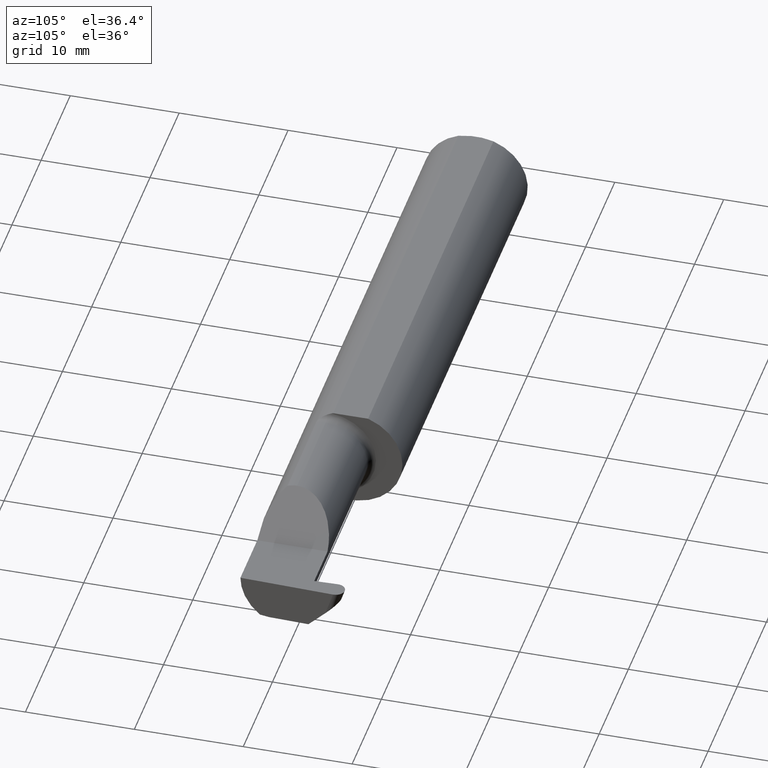
[diagram: clean part render]
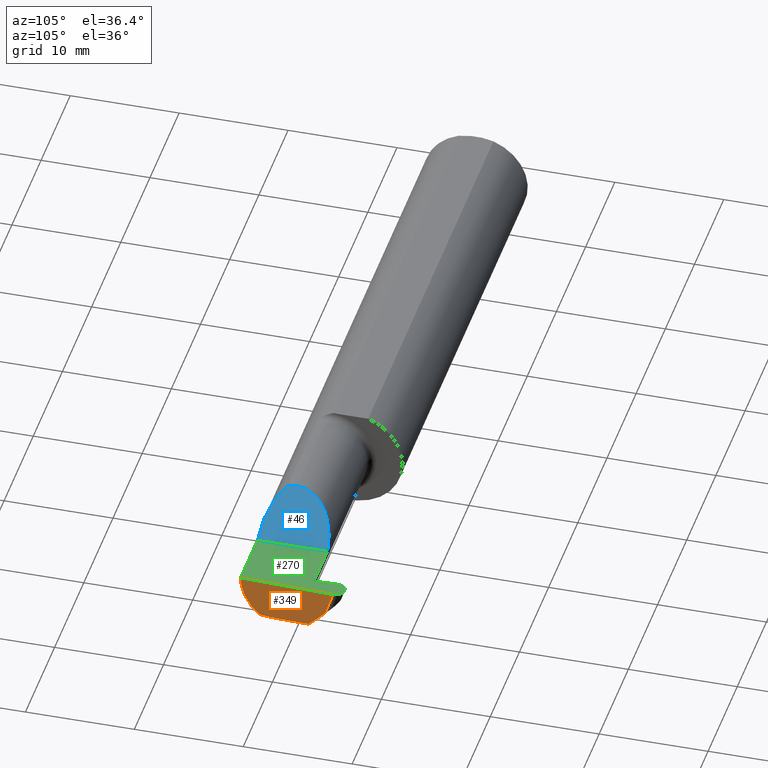
[diagram: same view with three faces highlighted in distinct colors, each labeled with its STEP entity id]
A machine part, auxiliary view with three faces highlighted in distinct colors.
Their STEP definitions:

[orange] entity #349 — the highlighted planar face has unit normal (-0.9992, 0.0349, 0.0175).
#12 = LINE ( 'NONE', #487, #18 ) ;
#18 = VECTOR ( 'NONE', #740, 39.37007874015747433 ) ;
#31 = EDGE_CURVE ( 'NONE', #382, #815, #12, .T. ) ;
#51 = VECTOR ( 'NONE', #198, 39.37007874015748854 ) ;
#71 = CARTESIAN_POINT ( 'NONE',  ( 2.489143054109411057, -0.08335000000000014619, -0.1500000000000000500 ) ) ;
#73 = CARTESIAN_POINT ( 'NONE',  ( 2.497385173767516786, 0.1218770478189729611, -0.08842600372417716570 ) ) ;
#80 = AXIS2_PLACEMENT_3D ( 'NONE', #354, #599, #474 ) ;
#96 = VERTEX_POINT ( 'NONE', #638 ) ;
#110 = CARTESIAN_POINT ( 'NONE',  ( 2.489143054109411057, -0.08335000000000014619, -0.1500000000000000500 ) ) ;
#158 = EDGE_CURVE ( 'NONE', #459, #96, #455, .T. ) ;
#189 = CARTESIAN_POINT ( 'NONE',  ( 2.487084196965268390, -0.1623470442677541203, -0.1099340280425337990 ) ) ;
#198 = DIRECTION ( 'NONE',  ( -0.03489949670249307273, -0.9993908270190959842, 0.000000000000000000 ) ) ;
#228 = PLANE ( 'NONE',  #80 ) ;
#264 = LINE ( 'NONE', #438, #51 ) ;
#286 = LINE ( 'NONE', #363, #439 ) ;
#290 = DIRECTION ( 'NONE',  ( 0.02739170151059983765, 0.3089010440752013031, 0.9506996579664920288 ) ) ;
#303 = ORIENTED_EDGE ( 'NONE', *, *, #708, .T. ) ;
#320 = CARTESIAN_POINT ( 'NONE',  ( 2.488744025780163405, -0.09477667630339431382, -0.1499999999999999667 ) ) ;
#348 = CARTESIAN_POINT ( 'NONE',  ( 2.496599625675735457, 0.1068818013178887971, -0.1034212502252615240 ) ) ;
#349 = ADVANCED_FACE ( 'NONE', ( #799 ), #228, .F. ) ;
#350 = CARTESIAN_POINT ( 'NONE',  ( 2.488026713523223243, -0.1172600179964006784, -0.1461167706989303650 ) ) ;
#352 = VERTEX_POINT ( 'NONE', #110 ) ;
#354 = CARTESIAN_POINT ( 'NONE',  ( 2.499980768683121024, 0.1519786885938757826, 0.000000000000000000 ) ) ;
#363 = CARTESIAN_POINT ( 'NONE',  ( 2.499944547461123268, 0.1507395558974708449, 0.0004036622306032633173 ) ) ;
#382 = VERTEX_POINT ( 'NONE', #669 ) ;
#384 = EDGE_CURVE ( 'NONE', #705, #815, #746, .T. ) ;
#420 = EDGE_CURVE ( 'NONE', #96, #352, #264, .T. ) ;
#422 = ORIENTED_EDGE ( 'NONE', *, *, #384, .F. ) ;
#438 = CARTESIAN_POINT ( 'NONE',  ( 2.489440290287315172, -0.07483826952468658478, -0.1500000000000000500 ) ) ;
#439 = VECTOR ( 'NONE', #290, 39.37007874015747433 ) ;
#443 = CARTESIAN_POINT ( 'NONE',  ( 2.488131149766799943, -0.1873499999999999888, 0.000000000000000000 ) ) ;
#455 = LINE ( 'NONE', #348, #526 ) ;
#459 = VERTEX_POINT ( 'NONE', #73 ) ;
#474 = DIRECTION ( 'NONE',  ( -0.03489949670249307273, -0.9993908270190959842, 0.000000000000000000 ) ) ;
#482 = ORIENTED_EDGE ( 'NONE', *, *, #772, .T. ) ;
#487 = CARTESIAN_POINT ( 'NONE',  ( 2.499980768683121024, 0.1519786885938757826, 0.000000000000000000 ) ) ;
#504 =( BOUNDED_CURVE ( )  B_SPLINE_CURVE ( 3, ( #753, #632, #320, #71 ),
 .UNSPECIFIED., .F., .F. ) 
 B_SPLINE_CURVE_WITH_KNOTS ( ( 4, 4 ),
 ( 0.8789888184544035754, 1.107026853503846553 ),
 .UNSPECIFIED. ) 
 CURVE ( )  GEOMETRIC_REPRESENTATION_ITEM ( )  RATIONAL_B_SPLINE_CURVE ( ( 1.000000000000000000, 0.9956712472009929815, 0.9956712472009929815, 1.000000000000000000 ) ) 
 REPRESENTATION_ITEM ( '' )  );
#526 = VECTOR ( 'NONE', #593, 39.37007874015748143 ) ;
#567 = CARTESIAN_POINT ( 'NONE',  ( 2.487121452143545408, -0.1873499999999999610, -0.05781030015605116007 ) ) ;
#593 = DIRECTION ( 'NONE',  ( -0.03701744261649735079, -0.7066221440565398915, -0.7066221440565479961 ) ) ;
#599 = DIRECTION ( 'NONE',  ( -0.9992386149554828290, 0.03489418134010577321, 0.01745240643728358798 ) ) ;
#620 = ORIENTED_EDGE ( 'NONE', *, *, #158, .F. ) ;
#621 = CARTESIAN_POINT ( 'NONE',  ( 2.488131149766799943, -0.1873499999999999888, 0.000000000000000000 ) ) ;
#632 = CARTESIAN_POINT ( 'NONE',  ( 2.488370294460939824, -0.1061291577212409576, -0.1486999626928446061 ) ) ;
#638 = CARTESIAN_POINT ( 'NONE',  ( 2.494159529209134529, 0.06030305154315081240, -0.1500000000000000500 ) ) ;
#669 = CARTESIAN_POINT ( 'NONE',  ( 2.499932917084233264, 0.1506083980881225415, 0.000000000000000000 ) ) ;
#670 = ORIENTED_EDGE ( 'NONE', *, *, #31, .T. ) ;
#683 = EDGE_LOOP ( 'NONE', ( #620, #303, #670, #422, #482, #803 ) ) ;
#705 = VERTEX_POINT ( 'NONE', #350 ) ;
#708 = EDGE_CURVE ( 'NONE', #459, #382, #286, .T. ) ;
#740 = DIRECTION ( 'NONE',  ( -0.03489949670249308661, -0.9993908270190960952, 0.000000000000000000 ) ) ;
#746 =( BOUNDED_CURVE ( )  B_SPLINE_CURVE ( 3, ( #757, #189, #567, #443 ),
 .UNSPECIFIED., .F., .F. ) 
 B_SPLINE_CURVE_WITH_KNOTS ( ( 4, 4 ),
 ( 5.852427379562188392, 6.746954780470635349 ),
 .UNSPECIFIED. ) 
 CURVE ( )  GEOMETRIC_REPRESENTATION_ITEM ( )  RATIONAL_B_SPLINE_CURVE ( ( 1.000000000000000000, 0.9344226172588803170, 0.9344226172588803170, 1.000000000000000000 ) ) 
 REPRESENTATION_ITEM ( '' )  );
#753 = CARTESIAN_POINT ( 'NONE',  ( 2.488026713523223243, -0.1172600179964006784, -0.1461167706989303650 ) ) ;
#757 = CARTESIAN_POINT ( 'NONE',  ( 2.488026713523223243, -0.1172600179964006784, -0.1461167706989303650 ) ) ;
#772 = EDGE_CURVE ( 'NONE', #705, #352, #504, .T. ) ;
#799 = FACE_OUTER_BOUND ( 'NONE', #683, .T. ) ;
#803 = ORIENTED_EDGE ( 'NONE', *, *, #420, .F. ) ;
#815 = VERTEX_POINT ( 'NONE', #621 ) ;

[blue] entity #46 — the highlighted planar face has unit normal (-0.7071, 0, -0.7071).
#26 = VERTEX_POINT ( 'NONE', #242 ) ;
#28 = CARTESIAN_POINT ( 'NONE',  ( 2.109999999999998987, -0.08334999999999999354, 0.1499999999999999944 ) ) ;
#46 = ADVANCED_FACE ( 'NONE', ( #429 ), #765, .F. ) ;
#87 = CARTESIAN_POINT ( 'NONE',  ( 2.113883229301068312, -0.1172600179964008171, 0.1461167706989301707 ) ) ;
#91 = DIRECTION ( 'NONE',  ( -0.000000000000000000, 1.000000000000000000, -0.000000000000000000 ) ) ;
#94 = CARTESIAN_POINT ( 'NONE',  ( 2.113883229301068312, -0.1172600179964008171, 0.1461167706989301707 ) ) ;
#138 = EDGE_LOOP ( 'NONE', ( #523, #284, #414, #582 ) ) ;
#152 = CARTESIAN_POINT ( 'NONE',  ( 2.260000000000000231, -0.2500000000000000555, 2.939152317953647352E-17 ) ) ;
#170 = VERTEX_POINT ( 'NONE', #94 ) ;
#192 = EDGE_CURVE ( 'NONE', #554, #170, #575, .T. ) ;
#209 = CARTESIAN_POINT ( 'NONE',  ( 2.150065971957465294, -0.1623470442677542591, 0.1099340280425336325 ) ) ;
#211 = CARTESIAN_POINT ( 'NONE',  ( 2.109999999999998543, 0.004517965644035734120, 0.1499999999999999667 ) ) ;
#219 = CARTESIAN_POINT ( 'NONE',  ( 2.109999999999998543, -0.09477667630339427218, 0.1499999999999999667 ) ) ;
#242 = CARTESIAN_POINT ( 'NONE',  ( 2.260000000000000231, 0.06664999999999998703, 9.797174393178831081E-17 ) ) ;
#248 = CARTESIAN_POINT ( 'NONE',  ( 2.260000000000000231, -0.2500000000000000555, 2.939152317953647352E-17 ) ) ;
#269 = DIRECTION ( 'NONE',  ( -0.7071067811865441310, 0.000000000000000000, -0.7071067811865510144 ) ) ;
#276 = CARTESIAN_POINT ( 'NONE',  ( 2.260000000000000231, -0.1873499999999999888, 2.939152317953647352E-17 ) ) ;
#284 = ORIENTED_EDGE ( 'NONE', *, *, #192, .F. ) ;
#336 = CARTESIAN_POINT ( 'NONE',  ( 2.260000000000000231, 0.06664999999999998703, 9.797174393178831081E-17 ) ) ;
#414 = ORIENTED_EDGE ( 'NONE', *, *, #629, .T. ) ;
#428 = VECTOR ( 'NONE', #91, 39.37007874015748143 ) ;
#429 = FACE_OUTER_BOUND ( 'NONE', #138, .T. ) ;
#462 = AXIS2_PLACEMENT_3D ( 'NONE', #248, #269, #695 ) ;
#490 = VERTEX_POINT ( 'NONE', #500 ) ;
#500 = CARTESIAN_POINT ( 'NONE',  ( 2.109999999999998987, -0.08334999999999999354, 0.1499999999999999944 ) ) ;
#519 = EDGE_CURVE ( 'NONE', #170, #490, #724, .T. ) ;
#523 = ORIENTED_EDGE ( 'NONE', *, *, #519, .F. ) ;
#554 = VERTEX_POINT ( 'NONE', #641 ) ;
#575 =( BOUNDED_CURVE ( )  B_SPLINE_CURVE ( 3, ( #276, #640, #209, #87 ),
 .UNSPECIFIED., .F., .F. ) 
 B_SPLINE_CURVE_WITH_KNOTS ( ( 4, 4 ),
 ( 4.712388980384688786, 5.606916381293135743 ),
 .UNSPECIFIED. ) 
 CURVE ( )  GEOMETRIC_REPRESENTATION_ITEM ( )  RATIONAL_B_SPLINE_CURVE ( ( 1.000000000000000000, 0.9344226172588803170, 0.9344226172588803170, 1.000000000000000000 ) ) 
 REPRESENTATION_ITEM ( '' )  );
#576 = CARTESIAN_POINT ( 'NONE',  ( 2.113883229301068312, -0.1172600179964008171, 0.1461167706989301707 ) ) ;
#582 = ORIENTED_EDGE ( 'NONE', *, *, #588, .F. ) ;
#588 = EDGE_CURVE ( 'NONE', #490, #26, #609, .T. ) ;
#591 = LINE ( 'NONE', #152, #428 ) ;
#609 =( BOUNDED_CURVE ( )  B_SPLINE_CURVE ( 3, ( #28, #211, #652, #336 ),
 .UNSPECIFIED., .F., .F. ) 
 B_SPLINE_CURVE_WITH_KNOTS ( ( 4, 4 ),
 ( 0.000000000000000000, 1.570796326794896336 ),
 .UNSPECIFIED. ) 
 CURVE ( )  GEOMETRIC_REPRESENTATION_ITEM ( )  RATIONAL_B_SPLINE_CURVE ( ( 1.000000000000000000, 0.8047378541243650485, 0.8047378541243650485, 1.000000000000000000 ) ) 
 REPRESENTATION_ITEM ( '' )  );
#629 = EDGE_CURVE ( 'NONE', #554, #26, #591, .T. ) ;
#640 = CARTESIAN_POINT ( 'NONE',  ( 2.202189699843948745, -0.1873500000000000443, 0.05781030015605096578 ) ) ;
#641 = CARTESIAN_POINT ( 'NONE',  ( 2.260000000000000231, -0.1873499999999999888, 2.939152317953647352E-17 ) ) ;
#652 = CARTESIAN_POINT ( 'NONE',  ( 2.172132034355963359, 0.06664999999999998703, 0.08786796564403573373 ) ) ;
#695 = DIRECTION ( 'NONE',  ( -0.7071067811865509034, 0.000000000000000000, 0.7071067811865440200 ) ) ;
#716 = CARTESIAN_POINT ( 'NONE',  ( 2.111300037307153765, -0.1061291577212410409, 0.1486999626928446061 ) ) ;
#724 =( BOUNDED_CURVE ( )  B_SPLINE_CURVE ( 3, ( #576, #716, #219, #771 ),
 .UNSPECIFIED., .F., .F. ) 
 B_SPLINE_CURVE_WITH_KNOTS ( ( 4, 4 ),
 ( 6.055147272130141367, 6.283185307179586232 ),
 .UNSPECIFIED. ) 
 CURVE ( )  GEOMETRIC_REPRESENTATION_ITEM ( )  RATIONAL_B_SPLINE_CURVE ( ( 1.000000000000000000, 0.9956712472009929815, 0.9956712472009929815, 1.000000000000000000 ) ) 
 REPRESENTATION_ITEM ( '' )  );
#765 = PLANE ( 'NONE',  #462 ) ;
#771 = CARTESIAN_POINT ( 'NONE',  ( 2.109999999999998987, -0.08334999999999999354, 0.1499999999999999944 ) ) ;

[green] entity #270 — the highlighted planar face has unit normal (-0, 0, -1).
#4 = CARTESIAN_POINT ( 'NONE',  ( 2.436927982915767288, 0.1506083980881225137, 0.000000000000000000 ) ) ;
#9 = EDGE_CURVE ( 'NONE', #382, #775, #140, .T. ) ;
#10 = ORIENTED_EDGE ( 'NONE', *, *, #525, .T. ) ;
#12 = LINE ( 'NONE', #487, #18 ) ;
#14 = CARTESIAN_POINT ( 'NONE',  ( 2.436235694025149279, 0.1704329581048291409, 7.809760431069554296E-18 ) ) ;
#18 = VECTOR ( 'NONE', #740, 39.37007874015747433 ) ;
#26 = VERTEX_POINT ( 'NONE', #242 ) ;
#31 = EDGE_CURVE ( 'NONE', #382, #815, #12, .T. ) ;
#36 = VECTOR ( 'NONE', #186, 39.37007874015748143 ) ;
#61 = EDGE_CURVE ( 'NONE', #127, #775, #745, .T. ) ;
#91 = DIRECTION ( 'NONE',  ( -0.000000000000000000, 1.000000000000000000, -0.000000000000000000 ) ) ;
#93 = VECTOR ( 'NONE', #678, 39.37007874015748143 ) ;
#112 = DIRECTION ( 'NONE',  ( 1.000000000000000000, 7.488084056613327882E-15, -0.000000000000000000 ) ) ;
#124 = CARTESIAN_POINT ( 'NONE',  ( 2.500000000000000000, -0.2500000000000000555, 0.000000000000000000 ) ) ;
#127 = VERTEX_POINT ( 'NONE', #774 ) ;
#133 = VECTOR ( 'NONE', #436, 39.37007874015748143 ) ;
#137 = CARTESIAN_POINT ( 'NONE',  ( 2.468721519699850209, 0.1846500000000000363, 0.000000000000000000 ) ) ;
#140 =( BOUNDED_CURVE ( )  B_SPLINE_CURVE ( 3, ( #306, #506, #762, #424 ),
 .UNSPECIFIED., .F., .T. ) 
 B_SPLINE_CURVE_WITH_KNOTS ( ( 4, 4 ),
 ( 1.627103621474502049, 3.225696776093215590 ),
 .UNSPECIFIED. ) 
 CURVE ( )  GEOMETRIC_REPRESENTATION_ITEM ( )  RATIONAL_B_SPLINE_CURVE ( ( 1.000000000000000000, 0.7981407609938108161, 0.7981407609938108161, 1.000000000000000000 ) ) 
 REPRESENTATION_ITEM ( '' )  );
#152 = CARTESIAN_POINT ( 'NONE',  ( 2.260000000000000231, -0.2500000000000000555, 2.939152317953647352E-17 ) ) ;
#178 = LINE ( 'NONE', #604, #477 ) ;
#186 = DIRECTION ( 'NONE',  ( 1.000000000000000000, -0.000000000000000000, -0.000000000000000000 ) ) ;
#242 = CARTESIAN_POINT ( 'NONE',  ( 2.260000000000000231, 0.06664999999999998703, 9.797174393178831081E-17 ) ) ;
#270 = ADVANCED_FACE ( 'NONE', ( #536 ), #310, .F. ) ;
#274 = VECTOR ( 'NONE', #387, 39.37007874015748143 ) ;
#293 = VERTEX_POINT ( 'NONE', #415 ) ;
#297 = ORIENTED_EDGE ( 'NONE', *, *, #61, .F. ) ;
#306 = CARTESIAN_POINT ( 'NONE',  ( 2.499932917084233264, 0.1506083980881225415, 0.000000000000000000 ) ) ;
#310 = PLANE ( 'NONE',  #671 ) ;
#341 = CARTESIAN_POINT ( 'NONE',  ( 2.468139380300150343, 0.1846500000000000363, 0.000000000000000000 ) ) ;
#360 = ORIENTED_EDGE ( 'NONE', *, *, #9, .T. ) ;
#364 = ORIENTED_EDGE ( 'NONE', *, *, #785, .F. ) ;
#374 = LINE ( 'NONE', #385, #133 ) ;
#382 = VERTEX_POINT ( 'NONE', #669 ) ;
#385 = CARTESIAN_POINT ( 'NONE',  ( 1.699999999999999956, 0.06664999999999998703, 9.797174393178831081E-17 ) ) ;
#387 = DIRECTION ( 'NONE',  ( -0.03489949670249346131, 0.9993908270190959842, -0.000000000000000000 ) ) ;
#393 = CARTESIAN_POINT ( 'NONE',  ( 2.436927982915767288, 0.1506083980881225137, 0.000000000000000000 ) ) ;
#397 = EDGE_CURVE ( 'NONE', #293, #808, #813, .T. ) ;
#415 = CARTESIAN_POINT ( 'NONE',  ( 2.439859874782298377, 0.06664999999999998703, 0.000000000000000000 ) ) ;
#424 = CARTESIAN_POINT ( 'NONE',  ( 2.468721519699850209, 0.1846500000000000363, 0.000000000000000000 ) ) ;
#428 = VECTOR ( 'NONE', #91, 39.37007874015748143 ) ;
#433 = CARTESIAN_POINT ( 'NONE',  ( 2.430739223982273156, 0.06664999999999991764, 0.000000000000000000 ) ) ;
#436 = DIRECTION ( 'NONE',  ( 1.000000000000000000, 0.000000000000000000, 0.000000000000000000 ) ) ;
#437 = ORIENTED_EDGE ( 'NONE', *, *, #397, .F. ) ;
#448 = CARTESIAN_POINT ( 'NONE',  ( -0.001039370078739994957, 0.1846500000000000363, 0.000000000000000000 ) ) ;
#465 = ORIENTED_EDGE ( 'NONE', *, *, #697, .F. ) ;
#471 = VERTEX_POINT ( 'NONE', #433 ) ;
#477 = VECTOR ( 'NONE', #112, 39.37007874015748143 ) ;
#487 = CARTESIAN_POINT ( 'NONE',  ( 2.499980768683121024, 0.1519786885938757826, 0.000000000000000000 ) ) ;
#506 = CARTESIAN_POINT ( 'NONE',  ( 2.500625205974851273, 0.1704329581048291409, -1.247844596711688058E-17 ) ) ;
#525 = EDGE_CURVE ( 'NONE', #127, #808, #758, .T. ) ;
#536 = FACE_OUTER_BOUND ( 'NONE', #755, .T. ) ;
#542 = ORIENTED_EDGE ( 'NONE', *, *, #800, .F. ) ;
#554 = VERTEX_POINT ( 'NONE', #641 ) ;
#565 = CARTESIAN_POINT ( 'NONE',  ( 3.749399456654646757E-32, -0.1873499999999999610, 3.061616997868383634E-16 ) ) ;
#587 = ORIENTED_EDGE ( 'NONE', *, *, #31, .F. ) ;
#591 = LINE ( 'NONE', #152, #428 ) ;
#604 = CARTESIAN_POINT ( 'NONE',  ( 2.439859874782298377, 0.06664999999999998703, 0.000000000000000000 ) ) ;
#614 = DIRECTION ( 'NONE',  ( -1.224646799147353947E-16, 0.000000000000000000, -1.000000000000000000 ) ) ;
#621 = CARTESIAN_POINT ( 'NONE',  ( 2.488131149766799943, -0.1873499999999999888, 0.000000000000000000 ) ) ;
#623 = CARTESIAN_POINT ( 'NONE',  ( 2.436880131316879083, 0.1519786885938757270, 0.000000000000000000 ) ) ;
#629 = EDGE_CURVE ( 'NONE', #554, #26, #591, .T. ) ;
#641 = CARTESIAN_POINT ( 'NONE',  ( 2.260000000000000231, -0.1873499999999999888, 2.939152317953647352E-17 ) ) ;
#669 = CARTESIAN_POINT ( 'NONE',  ( 2.499932917084233264, 0.1506083980881225415, 0.000000000000000000 ) ) ;
#671 = AXIS2_PLACEMENT_3D ( 'NONE', #124, #614, #791 ) ;
#678 = DIRECTION ( 'NONE',  ( -1.000000000000000000, -0.000000000000000000, -0.000000000000000000 ) ) ;
#697 = EDGE_CURVE ( 'NONE', #471, #293, #178, .T. ) ;
#740 = DIRECTION ( 'NONE',  ( -0.03489949670249308661, -0.9993908270190960952, 0.000000000000000000 ) ) ;
#745 = LINE ( 'NONE', #448, #36 ) ;
#750 = LINE ( 'NONE', #565, #93 ) ;
#755 = EDGE_LOOP ( 'NONE', ( #297, #10, #437, #465, #364, #806, #542, #587, #360 ) ) ;
#758 =( BOUNDED_CURVE ( )  B_SPLINE_CURVE ( 3, ( #341, #764, #14, #393 ),
 .UNSPECIFIED., .F., .F. ) 
 B_SPLINE_CURVE_WITH_KNOTS ( ( 4, 4 ),
 ( 3.057488531086369754, 4.656081685705084183 ),
 .UNSPECIFIED. ) 
 CURVE ( )  GEOMETRIC_REPRESENTATION_ITEM ( )  RATIONAL_B_SPLINE_CURVE ( ( 1.000000000000000000, 0.7981407609938104830, 0.7981407609938104830, 1.000000000000000000 ) ) 
 REPRESENTATION_ITEM ( '' )  );
#762 = CARTESIAN_POINT ( 'NONE',  ( 2.487590162989234077, 0.1846499999999998698, -1.088211360020845268E-17 ) ) ;
#764 = CARTESIAN_POINT ( 'NONE',  ( 2.449270737010766030, 0.1846499999999998975, 6.213428064161130250E-18 ) ) ;
#774 = CARTESIAN_POINT ( 'NONE',  ( 2.468139380300150343, 0.1846500000000000363, 0.000000000000000000 ) ) ;
#775 = VERTEX_POINT ( 'NONE', #137 ) ;
#785 = EDGE_CURVE ( 'NONE', #26, #471, #374, .T. ) ;
#791 = DIRECTION ( 'NONE',  ( -1.000000000000000000, 0.000000000000000000, 1.224646799147353947E-16 ) ) ;
#800 = EDGE_CURVE ( 'NONE', #815, #554, #750, .T. ) ;
#806 = ORIENTED_EDGE ( 'NONE', *, *, #629, .F. ) ;
#808 = VERTEX_POINT ( 'NONE', #4 ) ;
#813 = LINE ( 'NONE', #623, #274 ) ;
#815 = VERTEX_POINT ( 'NONE', #621 ) ;